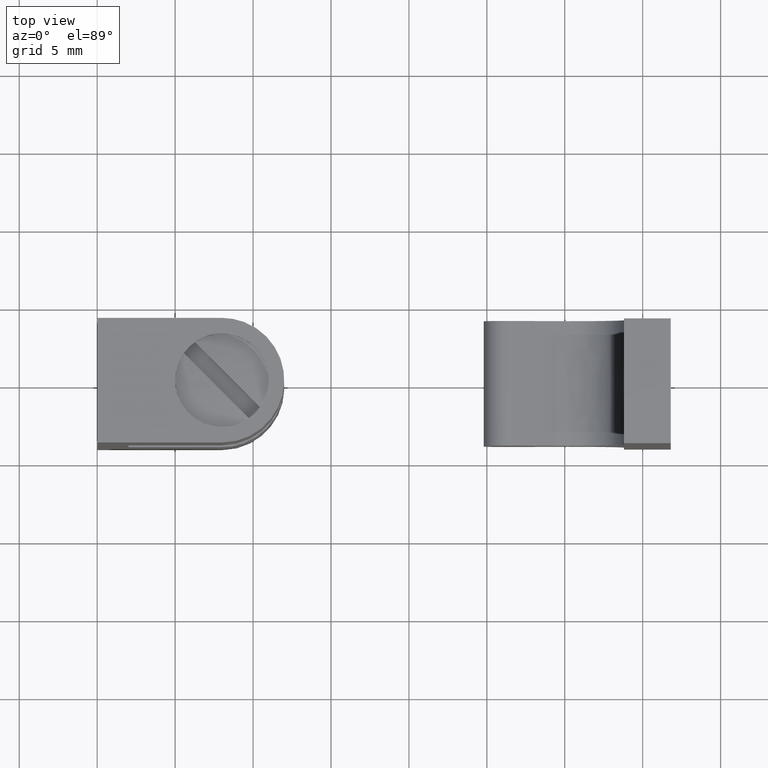
[diagram: clean part render]
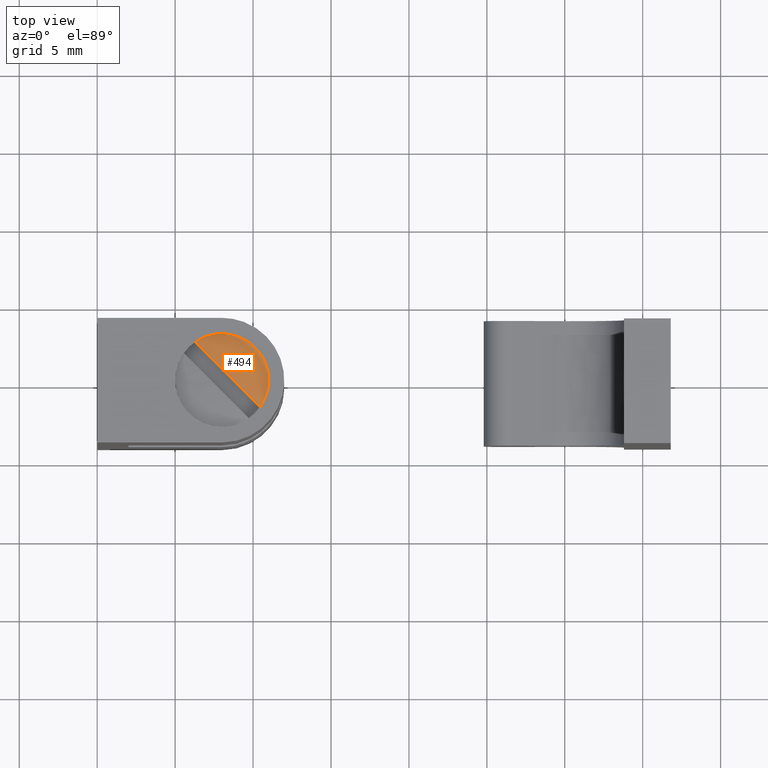
[diagram: same view with one face highlighted and labeled with its STEP entity id]
A machine part, top view. The second image highlights one B-rep face of the part: STEP entity #494.
In plain terms, the highlighted face is a freeform B-spline surface patch.
Its self-contained STEP definition (entity closure, byte-faithful):
#66=CARTESIAN_POINT('',(8.697603648799229,2.917740498818132,13.499982695679510));
#67=VERTEX_POINT('',#66);
#68=CARTESIAN_POINT('',(10.445059090291680,-1.738159090291785,13.499982695679501));
#69=VERTEX_POINT('',#68);
#70=CARTESIAN_POINT('',(8.697603648799230,2.917740498818133,13.499982695679513));
#71=CARTESIAN_POINT('',(9.521912823668753,2.720627863450550,13.499982695679503));
#72=CARTESIAN_POINT('',(10.121220343559671,2.121320343559614,13.499982695679501));
#73=CARTESIAN_POINT('',(11.914109670485615,0.328431016633621,13.499982695679506));
#74=CARTESIAN_POINT('',(10.445059090291680,-1.738159090291785,13.499982695679501));
#82=(BOUNDED_CURVE()B_SPLINE_CURVE(2,(#70,#71,#72,#73,#74),.UNSPECIFIED.,.F.,.U.)B_SPLINE_CURVE_WITH_KNOTS((3,2,3),(0.301673434288160,0.500000000000000,1.0),.UNSPECIFIED.)CURVE()GEOMETRIC_REPRESENTATION_ITEM()RATIONAL_B_SPLINE_CURVE((0.886923667013081,0.906292434024114,1.0,0.763754377434139,1.0))REPRESENTATION_ITEM(''));
#83=EDGE_CURVE('',#67,#69,#82,.T.);
#198=CARTESIAN_POINT('',(6.261740909708280,2.445159090291730,13.499982695679540));
#199=VERTEX_POINT('',#198);
#200=CARTESIAN_POINT('',(6.261740909708280,2.445159090291730,13.499982695679540));
#201=CARTESIAN_POINT('',(7.372347554532482,3.234641886361762,13.499982695679524));
#202=CARTESIAN_POINT('',(8.697603648799229,2.917740498818132,13.499982695679510));
#210=(BOUNDED_CURVE()B_SPLINE_CURVE(2,(#200,#201,#202),.UNSPECIFIED.,.F.,.U.)B_SPLINE_CURVE_WITH_KNOTS((3,3),(0.0,0.301673434288160),.UNSPECIFIED.)CURVE()GEOMETRIC_REPRESENTATION_ITEM()RATIONAL_B_SPLINE_CURVE((1.0,0.857461943410025,0.886923667013081))REPRESENTATION_ITEM(''));
#211=EDGE_CURVE('',#199,#67,#210,.T.);
#427=CARTESIAN_POINT('',(6.261740909708280,2.445159090291730,13.499982695679540));
#428=CARTESIAN_POINT('',(6.607909987367646,2.098990012632353,13.583514447493251));
#429=CARTESIAN_POINT('',(6.955373702508588,1.751526297491400,13.641326805433239));
#430=CARTESIAN_POINT('',(7.478431805574305,1.228468194425669,13.691044133537080));
#431=CARTESIAN_POINT('',(7.653099395148545,1.053800604851427,13.701360969692910));
#432=CARTESIAN_POINT('',(8.002974925344981,0.703925074654979,13.711259975636249));
#433=CARTESIAN_POINT('',(8.178204625069688,0.528695374930266,13.710403933927680));
#434=CARTESIAN_POINT('',(8.528579044079168,0.178320955920778,13.710403894854361));
#435=CARTESIAN_POINT('',(8.703809302842814,0.003090697157125,13.711260123188840));
#436=CARTESIAN_POINT('',(9.053686063421811,-0.346786063421878,13.701361679765039));
#437=CARTESIAN_POINT('',(9.228354592877121,-0.521454592877194,13.691045136799350));
#438=CARTESIAN_POINT('',(9.751416629419714,-1.044516629419803,13.641328303528869));
#439=CARTESIAN_POINT('',(10.098884432145480,-1.391984432145575,13.583515794083310));
#440=CARTESIAN_POINT('',(10.445059090291680,-1.738159090291785,13.499982695679501));
#441=B_SPLINE_CURVE_WITH_KNOTS('',3,(#427,#428,#429,#430,#431,#432,#433,#434,#435,#436,#437,#438,#439,#440),.UNSPECIFIED.,.F.,.U.,(4,2,2,2,2,2,4),(0.0,0.250000000000000,0.375000000000000,0.500000000000000,0.625000000000000,0.750000000000000,1.0),.UNSPECIFIED.);
#442=EDGE_CURVE('',#199,#69,#441,.T.);
#460=CARTESIAN_POINT('',(6.019725402360606,2.418539332744302,13.477642990944641));
#461=CARTESIAN_POINT('',(6.883312175504948,1.363774474848843,13.726036549828065));
#462=CARTESIAN_POINT('',(7.761055400216023,0.291719255301910,13.709458913934217));
#463=CARTESIAN_POINT('',(6.883517773610890,3.125767736279775,13.477642990944643));
#464=CARTESIAN_POINT('',(7.370390459298493,1.762568917251135,13.726036549828054));
#465=CARTESIAN_POINT('',(7.865244264901834,0.377023695223350,13.709458913934217));
#466=CARTESIAN_POINT('',(7.999900000000001,3.125767736279775,13.477642990944640));
#467=CARTESIAN_POINT('',(7.999900000000000,1.762568917251134,13.726036549828059));
#468=CARTESIAN_POINT('',(7.999900000000000,0.377023695223350,13.709458913934220));
#469=CARTESIAN_POINT('',(11.125667736279777,3.125767736279774,13.477642990944640));
#470=CARTESIAN_POINT('',(9.762468917251134,1.762568917251133,13.726036549828057));
#471=CARTESIAN_POINT('',(8.376923695223351,0.377023695223348,13.709458913934219));
#472=CARTESIAN_POINT('',(11.125667736279777,0.0,13.477642990944640));
#473=CARTESIAN_POINT('',(9.762468917251134,0.0,13.726036549828059));
#474=CARTESIAN_POINT('',(8.376923695223352,0.0,13.709458913934220));
#475=CARTESIAN_POINT('',(11.125667736279778,-1.116382233333260,13.477642990944641));
#476=CARTESIAN_POINT('',(9.762468917251136,-0.629509544617197,13.726036549828056));
#477=CARTESIAN_POINT('',(8.376923695223351,-0.134655735935758,13.709458913934226));
#478=CARTESIAN_POINT('',(10.418439324941399,-1.980174607169678,13.477642990944643));
#479=CARTESIAN_POINT('',(9.363674470448915,-1.116587829869026,13.726036549828059));
#480=CARTESIAN_POINT('',(8.291619254360738,-0.238844600933502,13.709458913934215));
#488=(BOUNDED_SURFACE()B_SPLINE_SURFACE(2,2,((#460,#463,#466,#469,#472,#475,#478),(#461,#464,#467,#470,#473,#476,#479),(#462,#465,#468,#471,#474,#477,#480)),.UNSPECIFIED.,.F.,.F.,.U.)B_SPLINE_SURFACE_WITH_KNOTS((3,3),(3,2,2,3),(0.0,2.814783980253128),(0.0,2.278734272636223,7.457675829417546,9.736410114401329),.UNSPECIFIED.)GEOMETRIC_REPRESENTATION_ITEM()RATIONAL_B_SPLINE_SURFACE(((0.816033136863217,0.830781665332968,0.953686064363775,0.674357883234735,0.953686064363775,0.830781664666998,0.816033136703384),(0.828840723756188,0.843820729418943,0.968654104981471,0.684941886256584,0.968654104981471,0.843820728742520,0.828840723593846),(0.849672140510390,0.865028641598619,0.992999478915430,0.702156665255808,0.992999478915430,0.865028640905196,0.849672140343968)))REPRESENTATION_ITEM('')SURFACE());
#489=ORIENTED_EDGE('',*,*,#83,.F.);
#490=ORIENTED_EDGE('',*,*,#211,.F.);
#491=ORIENTED_EDGE('',*,*,#442,.T.);
#492=EDGE_LOOP('',(#489,#490,#491));
#493=FACE_OUTER_BOUND('',#492,.T.);
#494=ADVANCED_FACE('',(#493),#488,.T.);